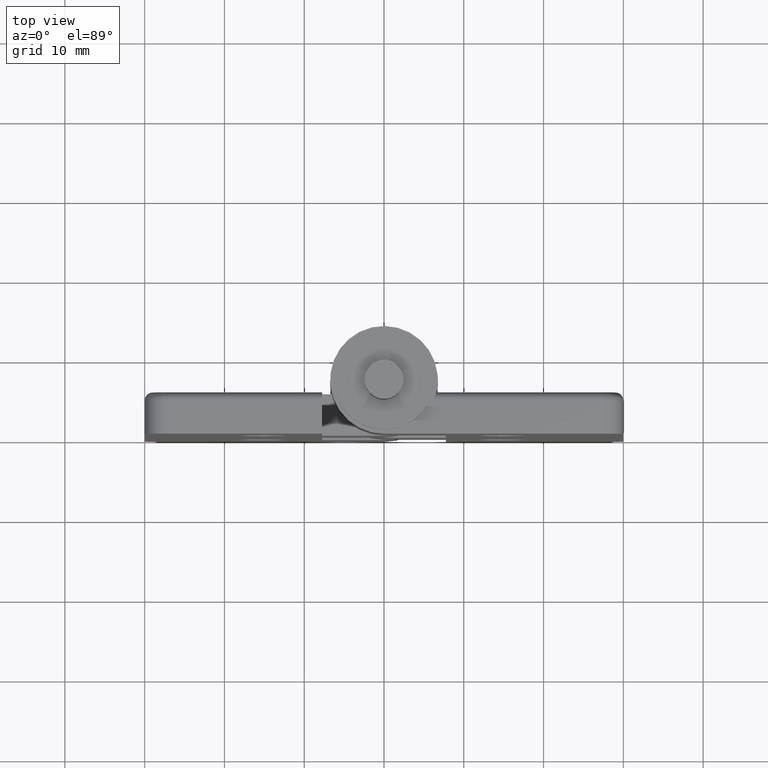
[diagram: clean part render]
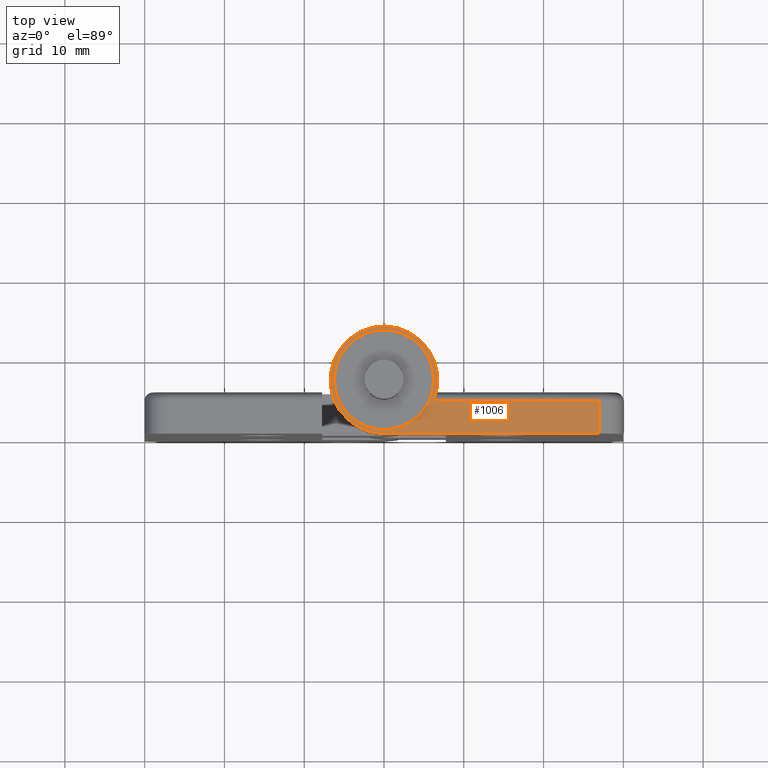
[diagram: same view with one face highlighted and labeled with its STEP entity id]
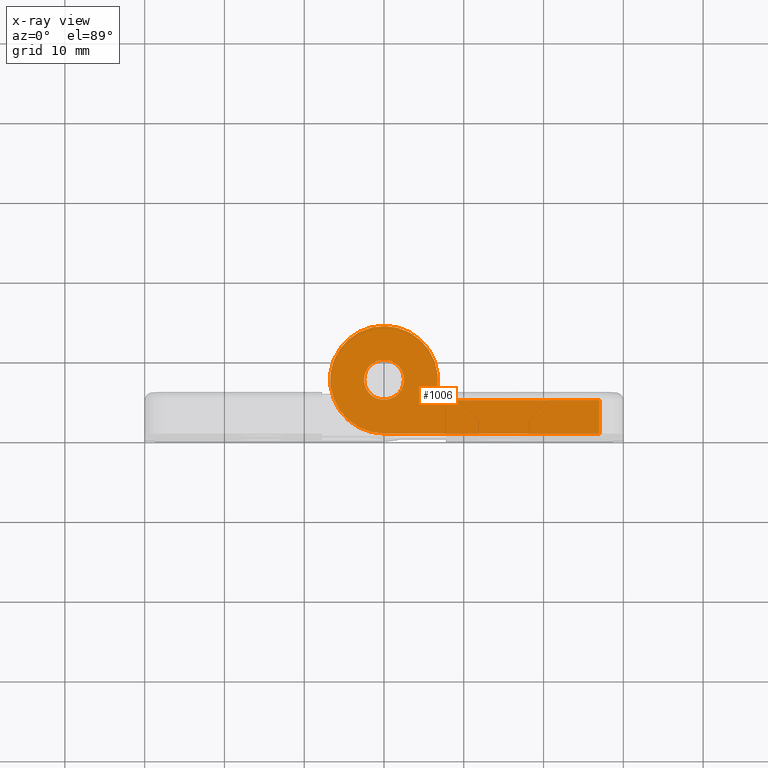
[diagram: x-ray of the same camera — body ghosted, the highlighted face saturated]
A machine part, top view. The second image highlights one B-rep face of the part: STEP entity #1006.
The next image is the same camera in x-ray: the body ghosted, the highlighted face saturated — about 0% of this face is hidden behind the body in this view.
In plain terms, the highlighted planar face has unit normal (0, 0, 1).
Its self-contained STEP definition (entity closure, byte-faithful):
#73=FACE_BOUND('',#192,.T.);
#95=PLANE('',#1083);
#131=FACE_OUTER_BOUND('',#191,.T.);
#191=EDGE_LOOP('',(#738,#739,#740,#741));
#192=EDGE_LOOP('',(#742));
#262=LINE('',#1563,#335);
#276=LINE('',#1610,#349);
#277=LINE('',#1615,#350);
#335=VECTOR('',#1205,20.7502000032001);
#349=VECTOR('',#1255,4.2);
#350=VECTOR('',#1262,27.);
#418=CIRCLE('',#1084,6.75);
#419=CIRCLE('',#1085,2.5);
#468=VERTEX_POINT('',#1547);
#471=VERTEX_POINT('',#1552);
#486=VERTEX_POINT('',#1609);
#487=VERTEX_POINT('',#1613);
#488=VERTEX_POINT('',#1616);
#565=EDGE_CURVE('',#471,#468,#262,.T.);
#588=EDGE_CURVE('',#468,#486,#276,.T.);
#590=EDGE_CURVE('',#471,#487,#418,.T.);
#591=EDGE_CURVE('',#487,#486,#277,.T.);
#592=EDGE_CURVE('',#488,#488,#419,.T.);
#738=ORIENTED_EDGE('',*,*,#565,.F.);
#739=ORIENTED_EDGE('',*,*,#590,.T.);
#740=ORIENTED_EDGE('',*,*,#591,.T.);
#741=ORIENTED_EDGE('',*,*,#588,.F.);
#742=ORIENTED_EDGE('',*,*,#592,.T.);
#1006=ADVANCED_FACE('',(#131,#73),#95,.T.);
#1083=AXIS2_PLACEMENT_3D('',#1612,#1258,#1259);
#1084=AXIS2_PLACEMENT_3D('',#1614,#1260,#1261);
#1085=AXIS2_PLACEMENT_3D('',#1617,#1263,#1264);
#1205=DIRECTION('',(-1.,-2.22044604925031E-16,0.));
#1255=DIRECTION('',(0.,-1.,0.));
#1258=DIRECTION('center_axis',(0.,0.,-1.));
#1259=DIRECTION('ref_axis',(-1.,0.,0.));
#1260=DIRECTION('center_axis',(0.,0.,-1.));
#1261=DIRECTION('ref_axis',(-1.,0.,0.));
#1262=DIRECTION('',(-1.,-1.22464679914735E-16,0.));
#1263=DIRECTION('center_axis',(0.,0.,1.));
#1264=DIRECTION('ref_axis',(-1.,0.,0.));
#1547=CARTESIAN_POINT('',(-27.,4.2,-60.));
#1552=CARTESIAN_POINT('',(-6.2497999967999,4.2,-60.));
#1563=CARTESIAN_POINT('',(-22.5,4.2,-60.));
#1609=CARTESIAN_POINT('',(-27.,-3.30654635769785E-15,-60.));
#1610=CARTESIAN_POINT('',(-27.,1.3,-60.));
#1612=CARTESIAN_POINT('Origin',(-15.,2.6,-60.));
#1613=CARTESIAN_POINT('',(0.,0.,-60.));
#1614=CARTESIAN_POINT('Origin',(-2.22044604925031E-15,6.75,-60.));
#1615=CARTESIAN_POINT('',(0.,0.,-60.));
#1616=CARTESIAN_POINT('',(2.5,6.75,-60.));
#1617=CARTESIAN_POINT('Origin',(-2.22044604925031E-15,6.75,-60.));